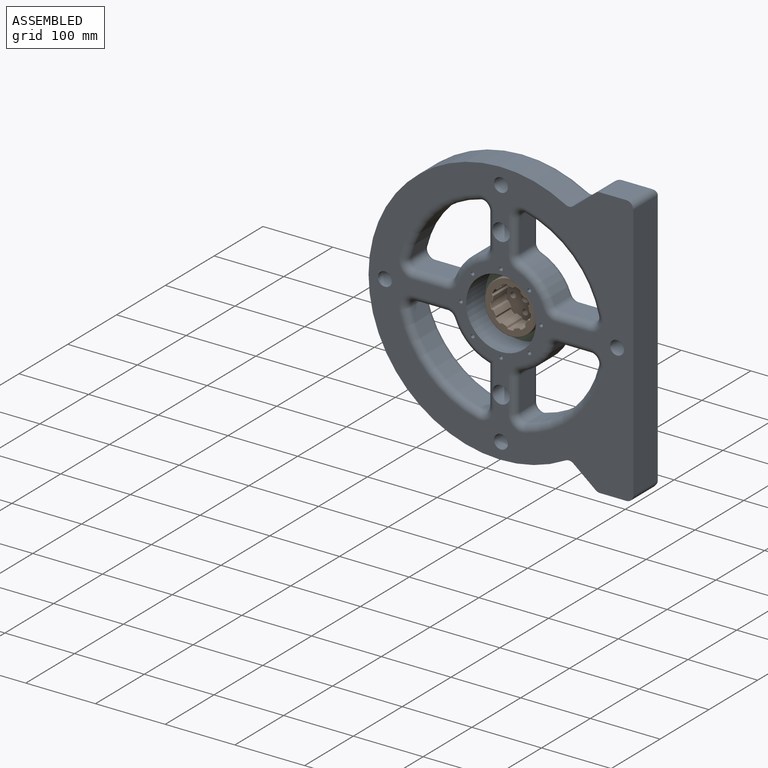
[diagram: assembled view]
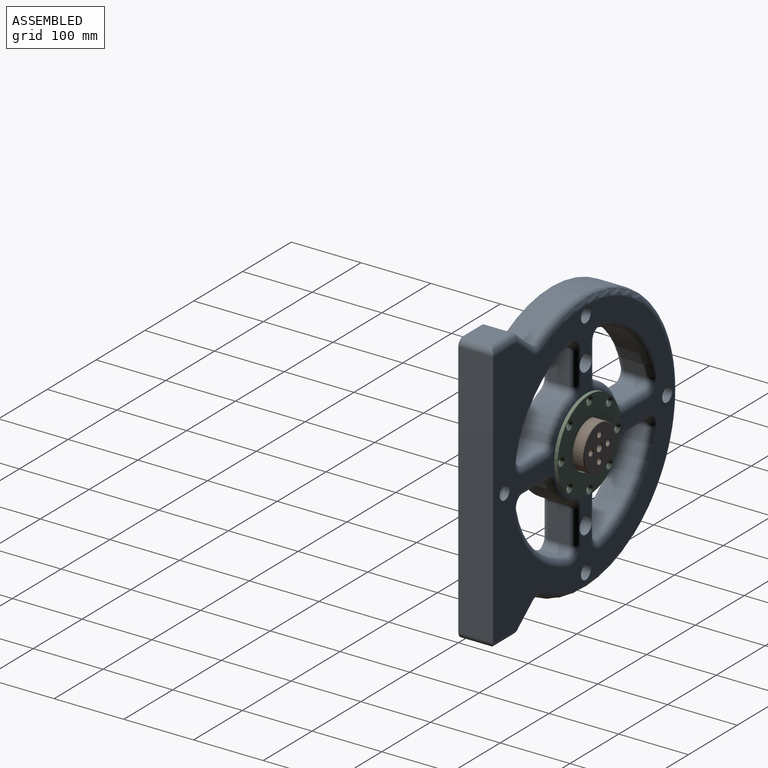
[diagram: assembled view, second angle]
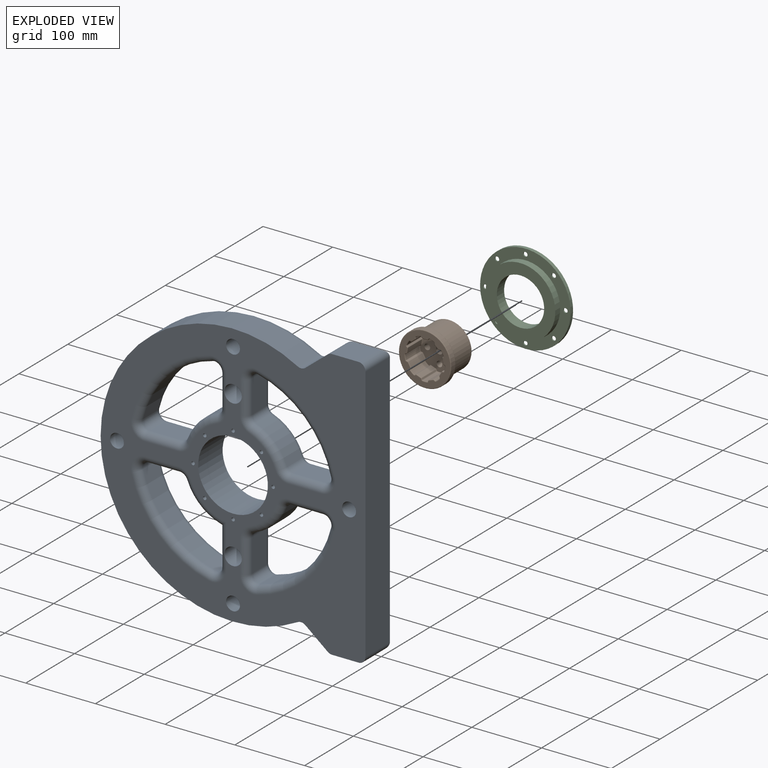
[diagram: exploded view]
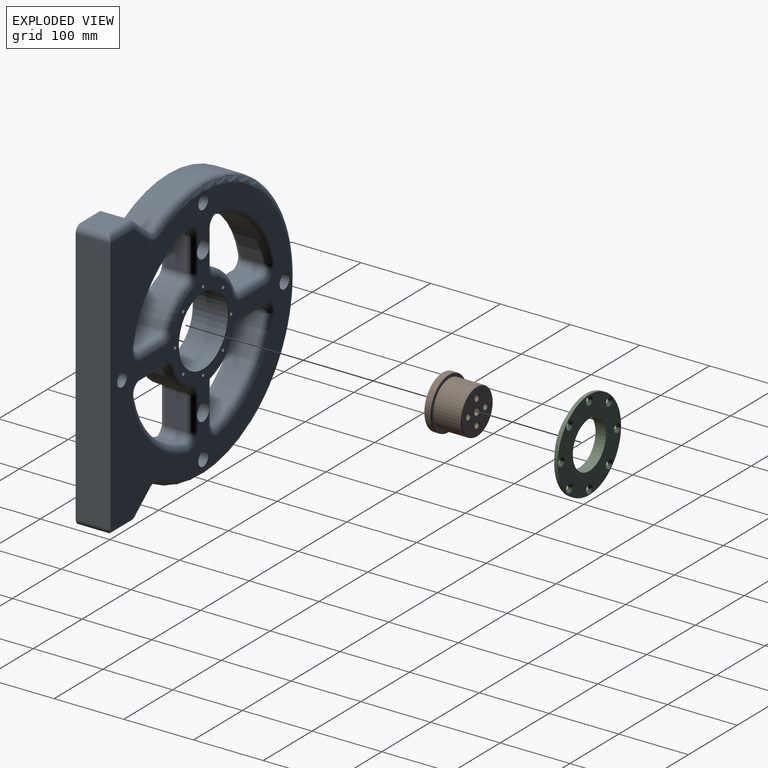
[diagram: exploded view, second angle]
ASSEMBLY  parts=3 mates=2
PART A: 131 faces, bbox 411.3x395.7x50 mm
  f0: plane 370x50mm, normal (0,-1,0), area 18500mm2, adj f29,f30,f108,f122
  f1: plane 40x37.89mm, normal (1,0,0), area 1515.7mm2, adj f29,f118,f121,f122
  f2: plane 40x31.99mm, normal (0.78,0.63,0), area 1647.2mm2, adj f29,f115,f118,f119
  f3: cylinder r=190mm len=380mm, axis (0,0,-1), area 31618.2mm2, adj f29,f112,f115,f116
  f4: plane 40x31.99mm, normal (-0.78,0.63,0), area 1647.2mm2, adj f29,f109,f112,f113
  f5: plane 46.96x30mm, normal (1,0,0), area 1408.8mm2, adj f48,f51,f55,f56
  f6: cylinder r=140mm len=103.91mm, axis (0,0,-1), area 4641.3mm2, adj f54,f55,f63,f64
  f7: plane 46.96x30mm, normal (0,1,0), area 1408.8mm2, adj f53,f62,f63,f67
  f8: cylinder r=140mm len=103.91mm, axis (0,0,-1), area 4641.3mm2, adj f35,f36,f43,f44
  f9: plane 46.96x30mm, normal (-1,0,0), area 1408.8mm2, adj f31,f35,f38,f39
  f10: cylinder r=75mm len=50.17mm, axis (0,0,-1), area 2115.3mm2, adj f25,f33,f38,f45
  f11: cylinder r=140mm len=103.91mm, axis (0,0,-1), area 4641.3mm2, adj f91,f92,f101,f102
  f12: plane 46.96x30mm, normal (0,-1,0), area 1408.8mm2, adj f88,f91,f95,f96
  f13: cylinder r=75mm len=43.7mm, axis (0,0,-1), area 1911.1mm2, adj f94,f95,f103,f104
  f14: cylinder r=140mm len=103.91mm, axis (0,0,-1), area 4641.3mm2, adj f74,f75,f83,f84
  f15: plane 46.96x30mm, normal (1,0,0), area 1408.8mm2, adj f68,f72,f73,f74
  f16: cylinder r=75mm len=43.7mm, axis (0,0,-1), area 1911.1mm2, adj f71,f72,f81,f82
  f17: cylinder r=12.5mm len=50mm, axis (0,0,-1), area 3916.2mm2, adj f29,f30,f37,f47,f88,f96
  f18: cylinder r=12.5mm len=50mm, axis (0,0,-1), area 3916.2mm2, adj f29,f30,f53,f67,f76,f87
  f19: plane 40x37.89mm, normal (-1,0,0), area 1515.7mm2, adj f29,f108,f109,f110
  f20: cylinder r=10mm len=50mm, axis (0,0,-1), area 3141.6mm2, adj f29,f30
  f21: cylinder r=10mm len=50mm, axis (0,0,-1), area 3141.6mm2, adj f29,f30
  f22: cylinder r=10mm len=50mm, axis (0,0,-1), area 3141.6mm2, adj f29,f30
  f23: cylinder r=10mm len=50mm, axis (0,0,-1), area 3141.6mm2, adj f29,f30
  f24: cylinder r=75mm len=43.7mm, axis (0,0,-1), area 1911.1mm2, adj f51,f52,f61,f62
  f25: plane 54.21x30mm, normal (0,1,0), area 1626.2mm2, adj f10,f37,f44,f47
  f26: plane 46.96x30mm, normal (-1,0,0), area 1408.8mm2, adj f93,f102,f103,f107
  f27: plane 46.96x30mm, normal (0,-1,0), area 1408.8mm2, adj f76,f81,f84,f87
  f28: cylinder r=50mm len=100mm, axis (0,0,-1), area 15708mm2, adj f29,f30
  f29: plane 390x380mm, normal (0,0,1), area 67300.3mm2, adj f0,f1,f2,f3,f4,f17,f18,f19
  f30: plane 370x370mm, normal (0,0,-1), area 57440.1mm2, adj f0,f17,f18,f20,f21,f22,f23,f28
  f31: cylinder r=10mm len=46.96mm, axis (0,-1,0), area 737.7mm2, adj f9,f30,f32,f34
  f32: torus R=20mm, axis (0,0,1), area 386.3mm2, adj f30,f31,f35,f36
  f33: torus R=65mm, axis (0,0,1), area 1097mm2, adj f10,f30,f34,f37
  f34: torus R=20mm, axis (0,0,1), area 259.2mm2, adj f30,f31,f33,f38
  f35: cylinder r=10mm len=30mm, axis (0,0,-1), area 541.1mm2, adj f8,f9,f32,f40
  f36: torus R=150mm, axis (0,0,1), area 2493.2mm2, adj f8,f30,f32,f41
  f37: cylinder r=10mm len=62.27mm, axis (-1,0,0), area 870.7mm2, adj f17,f25,f30,f33,f41
  f38: cylinder r=10mm len=30mm, axis (0,0,-1), area 363mm2, adj f9,f10,f34,f42
  f39: cylinder r=10mm len=46.96mm, axis (0,1,0), area 737.7mm2, adj f9,f29,f40,f42
  f40: torus R=20mm, axis (0,0,1), area 386.3mm2, adj f29,f35,f39,f43
  f41: torus R=20mm, axis (0,0,1), area 386.3mm2, adj f30,f36,f37,f44
  f42: torus R=20mm, axis (0,0,1), area 259.2mm2, adj f29,f38,f39,f45
  f43: torus R=150mm, axis (0,0,1), area 2493.2mm2, adj f8,f29,f40,f46
  f44: cylinder r=10mm len=30mm, axis (0,0,-1), area 541.1mm2, adj f8,f25,f41,f46
  f45: torus R=65mm, axis (0,0,1), area 1097mm2, adj f10,f29,f42,f47
  f46: torus R=20mm, axis (0,0,1), area 386.3mm2, adj f29,f43,f44,f47
  f47: cylinder r=10mm len=62.27mm, axis (1,0,0), area 870.7mm2, adj f17,f25,f29,f45,f46
  f48: cylinder r=10mm len=46.96mm, axis (0,1,0), area 737.7mm2, adj f5,f30,f49,f50
  f49: torus R=20mm, axis (0,0,1), area 259.2mm2, adj f30,f48,f51,f52
  f50: torus R=20mm, axis (0,0,1), area 386.3mm2, adj f30,f48,f54,f55
  f51: cylinder r=10mm len=30mm, axis (0,0,-1), area 363mm2, adj f5,f24,f49,f57
  f52: torus R=65mm, axis (0,0,1), area 952.2mm2, adj f24,f30,f49,f58
  f53: cylinder r=10mm len=46.96mm, axis (-1,0,0), area 711.9mm2, adj f7,f18,f30,f58,f59
  f54: torus R=150mm, axis (0,0,1), area 2493.2mm2, adj f6,f30,f50,f59
  f55: cylinder r=10mm len=30mm, axis (0,0,-1), area 541.1mm2, adj f5,f6,f50,f60
  f56: cylinder r=10mm len=46.96mm, axis (0,-1,0), area 737.7mm2, adj f5,f29,f57,f60
  f57: torus R=20mm, axis (0,0,1), area 259.2mm2, adj f29,f51,f56,f61
  f58: torus R=20mm, axis (0,0,1), area 259.2mm2, adj f30,f52,f53,f62
  f59: torus R=20mm, axis (0,0,1), area 386.3mm2, adj f30,f53,f54,f63
  f60: torus R=20mm, axis (0,0,1), area 386.3mm2, adj f29,f55,f56,f64
  f61: torus R=65mm, axis (0,0,1), area 952.2mm2, adj f24,f29,f57,f65
  f62: cylinder r=10mm len=30mm, axis (0,0,-1), area 363mm2, adj f7,f24,f58,f65
  f63: cylinder r=10mm len=30mm, axis (0,0,-1), area 541.1mm2, adj f6,f7,f59,f66
  f64: torus R=150mm, axis (0,0,1), area 2493.2mm2, adj f6,f29,f60,f66
  f65: torus R=20mm, axis (0,0,1), area 259.2mm2, adj f29,f61,f62,f67
  f66: torus R=20mm, axis (0,0,1), area 386.3mm2, adj f29,f63,f64,f67
  f67: cylinder r=10mm len=46.96mm, axis (1,0,0), area 711.9mm2, adj f7,f18,f29,f65,f66
  f68: cylinder r=10mm len=46.96mm, axis (0,1,0), area 737.7mm2, adj f15,f30,f69,f70
  f69: torus R=20mm, axis (0,0,1), area 259.2mm2, adj f30,f68,f71,f72
  f70: torus R=20mm, axis (0,0,1), area 386.3mm2, adj f30,f68,f74,f75
  f71: torus R=65mm, axis (0,0,1), area 952.2mm2, adj f16,f30,f69,f77
  f72: cylinder r=10mm len=30mm, axis (0,0,-1), area 363mm2, adj f15,f16,f69,f78
  f73: cylinder r=10mm len=46.96mm, axis (0,-1,0), area 737.7mm2, adj f15,f29,f78,f79
  f74: cylinder r=10mm len=30mm, axis (0,0,-1), area 541.1mm2, adj f14,f15,f70,f79
  f75: torus R=150mm, axis (0,0,1), area 2493.2mm2, adj f14,f30,f70,f80
  f76: cylinder r=10mm len=46.96mm, axis (1,0,0), area 711.9mm2, adj f18,f27,f30,f77,f80
  f77: torus R=20mm, axis (0,0,1), area 259.2mm2, adj f30,f71,f76,f81
  f78: torus R=20mm, axis (0,0,1), area 259.2mm2, adj f29,f72,f73,f82
  f79: torus R=20mm, axis (0,0,1), area 386.3mm2, adj f29,f73,f74,f83
  f80: torus R=20mm, axis (0,0,1), area 386.3mm2, adj f30,f75,f76,f84
  f81: cylinder r=10mm len=30mm, axis (0,0,-1), area 363mm2, adj f16,f27,f77,f85
  f82: torus R=65mm, axis (0,0,1), area 952.2mm2, adj f16,f29,f78,f85
  f83: torus R=150mm, axis (0,0,1), area 2493.2mm2, adj f14,f29,f79,f86
  f84: cylinder r=10mm len=30mm, axis (0,0,-1), area 541.1mm2, adj f14,f27,f80,f86
  f85: torus R=20mm, axis (0,0,1), area 259.2mm2, adj f29,f81,f82,f87
  f86: torus R=20mm, axis (0,0,1), area 386.3mm2, adj f29,f83,f84,f87
  f87: cylinder r=10mm len=46.96mm, axis (-1,0,0), area 711.9mm2, adj f18,f27,f29,f85,f86
  f88: cylinder r=10mm len=46.96mm, axis (1,0,0), area 711.9mm2, adj f12,f17,f30,f89,f90
  f89: torus R=20mm, axis (0,0,1), area 386.3mm2, adj f30,f88,f91,f92
  f90: torus R=20mm, axis (0,0,1), area 259.2mm2, adj f30,f88,f94,f95
  f91: cylinder r=10mm len=30mm, axis (0,0,-1), area 541.1mm2, adj f11,f12,f89,f97
  f92: torus R=150mm, axis (0,0,1), area 2493.2mm2, adj f11,f30,f89,f98
  f93: cylinder r=10mm len=46.96mm, axis (0,-1,0), area 737.7mm2, adj f26,f30,f98,f99
  f94: torus R=65mm, axis (0,0,1), area 952.2mm2, adj f13,f30,f90,f99
  f95: cylinder r=10mm len=30mm, axis (0,0,-1), area 363mm2, adj f12,f13,f90,f100
  f96: cylinder r=10mm len=46.96mm, axis (-1,0,0), area 711.9mm2, adj f12,f17,f29,f97,f100
  f97: torus R=20mm, axis (0,0,1), area 386.3mm2, adj f29,f91,f96,f101
  f98: torus R=20mm, axis (0,0,1), area 386.3mm2, adj f30,f92,f93,f102
  f99: torus R=20mm, axis (0,0,1), area 259.2mm2, adj f30,f93,f94,f103
  f100: torus R=20mm, axis (0,0,1), area 259.2mm2, adj f29,f95,f96,f104
  f101: torus R=150mm, axis (0,0,1), area 2493.2mm2, adj f11,f29,f97,f105
  f102: cylinder r=10mm len=30mm, axis (0,0,-1), area 541.1mm2, adj f11,f26,f98,f105
  f103: cylinder r=10mm len=30mm, axis (0,0,-1), area 363mm2, adj f13,f26,f99,f106
  f104: torus R=65mm, axis (0,0,1), area 952.2mm2, adj f13,f29,f100,f106
  f105: torus R=20mm, axis (0,0,1), area 386.3mm2, adj f29,f101,f102,f107
  f106: torus R=20mm, axis (0,0,1), area 259.2mm2, adj f29,f103,f104,f107
  f107: cylinder r=10mm len=46.96mm, axis (0,1,0), area 737.7mm2, adj f26,f29,f105,f106
  f108: cylinder r=10mm len=50mm, axis (0,0,-1), area 728.3mm2, adj f0,f19,f29,f110
  f109: cylinder r=10mm len=40mm, axis (0,0,-1), area 272.4mm2, adj f4,f19,f29,f111
  f110: cylinder r=10mm len=47.89mm, axis (0,-1,0), area 695.2mm2, adj f19,f30,f108,f111
  f111: sphere r=10mm, area 68.1mm2, adj f109,f110,f113
  f112: cylinder r=10mm len=40mm, axis (0,0,-1), area 476.1mm2, adj f3,f4,f29,f114
  f113: cylinder r=10mm len=38.29mm, axis (-0.63,-0.78,0), area 646.9mm2, adj f4,f30,f111,f114
  f114: torus R=20mm, axis (0,0,1), area 254.9mm2, adj f30,f112,f113,f116
  f115: cylinder r=10mm len=40mm, axis (0,0,-1), area 476.1mm2, adj f2,f3,f29,f117
  f116: torus R=180mm, axis (0,0,1), area 12179mm2, adj f3,f30,f114,f117
  f117: torus R=20mm, axis (0,0,1), area 254.9mm2, adj f30,f115,f116,f119
  f118: cylinder r=10mm len=40mm, axis (0,0,1), area 272.4mm2, adj f1,f2,f29,f120
  f119: cylinder r=10mm len=38.29mm, axis (-0.63,0.78,0), area 646.9mm2, adj f2,f30,f117,f120
  f120: sphere r=10mm, area 68.1mm2, adj f118,f119,f121
  f121: cylinder r=10mm len=47.89mm, axis (0,1,0), area 695.2mm2, adj f1,f30,f120,f122
  f122: cylinder r=10mm len=50mm, axis (0,0,-1), area 728.3mm2, adj f0,f1,f29,f121
  f123: cylinder r=2.5mm len=50mm, axis (0,0,-1), area 785.4mm2, adj f29,f30
  f124: cylinder r=2.5mm len=50mm, axis (0,0,-1), area 785.4mm2, adj f29,f30
  f125: cylinder r=2.5mm len=50mm, axis (0,0,-1), area 785.4mm2, adj f29,f30
  f126: cylinder r=2.5mm len=50mm, axis (0,0,-1), area 785.4mm2, adj f29,f30
  f127: cylinder r=2.5mm len=50mm, axis (0,0,-1), area 785.4mm2, adj f29,f30
  f128: cylinder r=2.5mm len=50mm, axis (0,0,-1), area 785.4mm2, adj f29,f30
  f129: cylinder r=2.5mm len=50mm, axis (0,0,-1), area 785.4mm2, adj f29,f30
  f130: cylinder r=2.5mm len=50mm, axis (0,0,-1), area 785.4mm2, adj f29,f30
PART B: 235 faces, bbox 81.2x81.2x50 mm
  f0: plane 73x73mm, normal (0,0,1), area 1668.9mm2, adj f47,f60,f64,f69,f70,f74,f79,f80
  f1: cylinder r=32.5mm len=65mm, axis (0,0,-1), area 7963.9mm2, adj f46,f54
  f2: cylinder r=25.94mm len=28mm, axis (0,0,-1), area 190.7mm2, adj f217,f218,f228,f229
  f3: plane 28x1.84mm, normal (0.94,-0.34,0), area 54.9mm2, adj f223,f228,f231,f234
  f4: cylinder r=86.08mm len=28mm, axis (0,0,-1), area 199.4mm2, adj f221,f222,f230,f231
  f5: plane 28x1.93mm, normal (0.17,0.98,0), area 54.9mm2, adj f211,f212,f220,f221
  f6: cylinder r=25.94mm len=28mm, axis (0,0,-1), area 190.7mm2, adj f201,f202,f210,f211
  f7: plane 28x1.7mm, normal (0.5,-0.87,0), area 54.9mm2, adj f191,f192,f200,f201
  f8: cylinder r=86.08mm len=28mm, axis (0,0,-1), area 199.4mm2, adj f181,f182,f190,f191
  f9: plane 28x1.5mm, normal (0.77,0.64,0), area 54.9mm2, adj f171,f172,f180,f181
  f10: cylinder r=25.94mm len=28mm, axis (0,0,-1), area 190.7mm2, adj f161,f162,f170,f171
  f11: plane 28x1.93mm, normal (-0.17,-0.98,0), area 54.9mm2, adj f151,f152,f160,f161
  f12: cylinder r=86.08mm len=28mm, axis (0,0,-1), area 199.4mm2, adj f141,f142,f150,f151
  f13: plane 28x1.96mm, normal (1,0,0), area 54.9mm2, adj f131,f132,f140,f141
  f14: cylinder r=25.94mm len=28mm, axis (0,0,-1), area 190.7mm2, adj f121,f122,f130,f131
  f15: plane 28x1.5mm, normal (-0.77,-0.64,0), area 54.9mm2, adj f111,f112,f120,f121
  f16: cylinder r=86.08mm len=28mm, axis (0,0,-1), area 199.4mm2, adj f101,f102,f110,f111
  f17: plane 28x1.5mm, normal (0.77,-0.64,0), area 54.9mm2, adj f91,f92,f100,f101
  f18: cylinder r=25.94mm len=28mm, axis (0,0,-1), area 190.7mm2, adj f81,f82,f90,f91
  f19: plane 28x1.96mm, normal (-1,0,0), area 54.9mm2, adj f71,f72,f80,f81
  f20: cylinder r=86.08mm len=28mm, axis (0,0,-1), area 199.4mm2, adj f61,f62,f70,f71
  f21: plane 28x1.93mm, normal (0.17,-0.98,0), area 54.9mm2, adj f55,f59,f60,f61
  f22: cylinder r=25.94mm len=28mm, axis (0,0,-1), area 190.7mm2, adj f58,f59,f68,f69
  f23: plane 28x1.5mm, normal (-0.77,0.64,0), area 54.9mm2, adj f67,f68,f78,f79
  f24: cylinder r=86.08mm len=28mm, axis (0,0,-1), area 199.4mm2, adj f77,f78,f88,f89
  f25: plane 28x1.7mm, normal (-0.5,-0.87,0), area 54.9mm2, adj f87,f88,f98,f99
  f26: cylinder r=25.94mm len=28mm, axis (0,0,-1), area 190.7mm2, adj f97,f98,f108,f109
  f27: plane 28x1.93mm, normal (-0.17,0.98,0), area 54.9mm2, adj f107,f108,f118,f119
  f28: cylinder r=86.08mm len=28mm, axis (0,0,-1), area 199.4mm2, adj f117,f118,f128,f129
  f29: plane 28x1.84mm, normal (-0.94,-0.34,0), area 54.9mm2, adj f127,f128,f138,f139
  f30: cylinder r=25.94mm len=28mm, axis (0,0,-1), area 190.7mm2, adj f137,f138,f148,f149
  f31: plane 28x1.7mm, normal (0.5,0.87,0), area 54.9mm2, adj f147,f148,f158,f159
  f32: cylinder r=86.08mm len=28mm, axis (0,0,-1), area 199.4mm2, adj f157,f158,f168,f169
  f33: plane 28x1.84mm, normal (-0.94,0.34,0), area 54.9mm2, adj f167,f168,f178,f179
  f34: cylinder r=25.94mm len=28mm, axis (0,0,-1), area 190.7mm2, adj f177,f178,f188,f189
  f35: plane 28x1.84mm, normal (0.94,0.34,0), area 54.9mm2, adj f187,f188,f198,f199
  f36: cylinder r=86.08mm len=28mm, axis (0,0,-1), area 199.4mm2, adj f197,f198,f208,f209
  f37: plane 28x1.7mm, normal (-0.5,0.87,0), area 54.9mm2, adj f207,f208,f218,f219
  f38: plane 63x63mm, normal (0,0,-1), area 2677.3mm2, adj f49,f50,f51,f52,f53,f54
  f39: plane 55.15x54.53mm, normal (0,0,1), area 1836.1mm2, adj f40,f41,f42,f43,f44,f55,f57,f58
  f40: cylinder r=4.1mm len=19mm, axis (0,0,1), area 489.5mm2, adj f39,f53
  f41: cylinder r=4.1mm len=19mm, axis (0,0,1), area 489.5mm2, adj f39,f52
  f42: cylinder r=4.1mm len=19mm, axis (0,0,1), area 489.5mm2, adj f39,f51
  f43: cylinder r=4.1mm len=19mm, axis (0,0,1), area 489.5mm2, adj f39,f50
  f44: cylinder r=5mm len=19mm, axis (0,0,1), area 596.9mm2, adj f39,f49
  f45: cylinder r=37.5mm len=75mm, axis (0,0,1), area 1885mm2, adj f47,f48
  f46: plane 73x73mm, normal (0,0,-1), area 867.1mm2, adj f1,f48
  f47: torus R=36.5mm, axis (0,0,1), area 366.5mm2, adj f0,f45
  f48: torus R=36.5mm, axis (0,0,1), area 366.5mm2, adj f45,f46
  f49: torus R=6mm, axis (0,0,1), area 52.9mm2, adj f38,f44
  f50: torus R=5.1mm, axis (0,0,1), area 44.1mm2, adj f38,f43
  f51: torus R=5.1mm, axis (0,0,1), area 44.1mm2, adj f38,f42
  f52: torus R=5.1mm, axis (0,0,1), area 44.1mm2, adj f38,f41
  f53: torus R=5.1mm, axis (0,0,1), area 44.1mm2, adj f38,f40
  f54: torus R=31.5mm, axis (0,0,1), area 317.2mm2, adj f1,f38
  f55: cylinder r=1mm len=2.11mm, axis (0.98,0.17,0), area 3.1mm2, adj f21,f39,f56,f57
  f56: sphere r=1mm, area 1.1mm2, adj f55,f58,f59
  f57: torus R=2mm, axis (0,0,1), area 1.8mm2, adj f39,f55,f61,f62
  f58: torus R=24.94mm, axis (0,0,1), area 10.5mm2, adj f22,f39,f56,f63
  f59: cylinder r=1mm len=28mm, axis (0,0,-1), area 30.5mm2, adj f21,f22,f56,f64
  f60: cylinder r=1mm len=2.11mm, axis (-0.98,-0.17,0), area 3.1mm2, adj f0,f21,f64,f65
  f61: cylinder r=1mm len=28mm, axis (0,0,-1), area 23.3mm2, adj f20,f21,f57,f65
  f62: torus R=87.08mm, axis (0,0,1), area 11.2mm2, adj f20,f39,f57,f66
  f63: sphere r=1mm, area 1.1mm2, adj f58,f67,f68
  f64: torus R=2mm, axis (0,0,1), area 2.3mm2, adj f0,f59,f60,f69
  f65: sphere r=1mm, area 0.8mm2, adj f60,f61,f70
  f66: torus R=2mm, axis (0,0,1), area 1.8mm2, adj f39,f62,f71,f72
  f67: cylinder r=1mm len=2.15mm, axis (-0.64,-0.77,0), area 3.1mm2, adj f23,f39,f63,f73
  f68: cylinder r=1mm len=28mm, axis (0,0,-1), area 30.5mm2, adj f22,f23,f63,f74
  f69: torus R=26.94mm, axis (0,0,1), area 10.8mm2, adj f0,f22,f64,f74
  f70: torus R=85.08mm, axis (0,0,1), area 11.1mm2, adj f0,f20,f65,f75
  f71: cylinder r=1mm len=28mm, axis (0,0,-1), area 23.3mm2, adj f19,f20,f66,f75
  f72: cylinder r=1mm len=1.96mm, axis (0,-1,0), area 3.1mm2, adj f19,f39,f66,f76
  f73: torus R=2mm, axis (0,0,1), area 1.8mm2, adj f39,f67,f77,f78
  f74: torus R=2mm, axis (0,0,1), area 2.3mm2, adj f0,f68,f69,f79
  f75: sphere r=1mm, area 0.8mm2, adj f70,f71,f80
  f76: sphere r=1mm, area 1.1mm2, adj f72,f81,f82
  f77: torus R=87.08mm, axis (0,0,1), area 11.2mm2, adj f24,f39,f73,f83
  f78: cylinder r=1mm len=28mm, axis (0,0,-1), area 23.3mm2, adj f23,f24,f73,f84
  f79: cylinder r=1mm len=2.15mm, axis (0.64,0.77,0), area 3.1mm2, adj f0,f23,f74,f84
  f80: cylinder r=1mm len=1.96mm, axis (0,1,0), area 3.1mm2, adj f0,f19,f75,f85
  f81: cylinder r=1mm len=28mm, axis (0,0,-1), area 30.5mm2, adj f18,f19,f76,f85
  f82: torus R=24.94mm, axis (0,0,1), area 10.5mm2, adj f18,f39,f76,f86
  f83: torus R=2mm, axis (0,0,1), area 1.8mm2, adj f39,f77,f87,f88
  f84: sphere r=1mm, area 0.8mm2, adj f78,f79,f89
  f85: torus R=2mm, axis (0,0,1), area 2.3mm2, adj f0,f80,f81,f90
  f86: sphere r=1mm, area 1.1mm2, adj f82,f91,f92
  f87: cylinder r=1mm len=2.2mm, axis (0.87,-0.5,0), area 3.1mm2, adj f25,f39,f83,f93
  f88: cylinder r=1mm len=28mm, axis (0,0,-1), area 23.3mm2, adj f24,f25,f83,f94
  f89: torus R=85.08mm, axis (0,0,1), area 11.1mm2, adj f0,f24,f84,f94
  f90: torus R=26.94mm, axis (0,0,1), area 10.8mm2, adj f0,f18,f85,f95
  f91: cylinder r=1mm len=28mm, axis (0,0,-1), area 30.5mm2, adj f17,f18,f86,f95
  f92: cylinder r=1mm len=2.15mm, axis (0.64,0.77,0), area 3.1mm2, adj f17,f39,f86,f96
  f93: sphere r=1mm, area 1.1mm2, adj f87,f97,f98
  f94: sphere r=1mm, area 0.8mm2, adj f88,f89,f99
  f95: torus R=2mm, axis (0,0,1), area 2.3mm2, adj f0,f90,f91,f100
  f96: torus R=2mm, axis (0,0,1), area 1.8mm2, adj f39,f92,f101,f102
  f97: torus R=24.94mm, axis (0,0,1), area 10.5mm2, adj f26,f39,f93,f103
  f98: cylinder r=1mm len=28mm, axis (0,0,-1), area 30.5mm2, adj f25,f26,f93,f104
  f99: cylinder r=1mm len=2.2mm, axis (-0.87,0.5,0), area 3.1mm2, adj f0,f25,f94,f104
  f100: cylinder r=1mm len=2.15mm, axis (-0.64,-0.77,0), area 3.1mm2, adj f0,f17,f95,f105
  f101: cylinder r=1mm len=28mm, axis (0,0,-1), area 23.3mm2, adj f16,f17,f96,f105
  f102: torus R=87.08mm, axis (0,0,1), area 11.2mm2, adj f16,f39,f96,f106
  f103: sphere r=1mm, area 1.1mm2, adj f97,f107,f108
  f104: torus R=2mm, axis (0,0,1), area 2.3mm2, adj f0,f98,f99,f109
  f105: sphere r=1mm, area 0.8mm2, adj f100,f101,f110
  f106: torus R=2mm, axis (0,0,1), area 1.8mm2, adj f39,f102,f111,f112
  f107: cylinder r=1mm len=2.11mm, axis (-0.98,-0.17,0), area 3.1mm2, adj f27,f39,f103,f113
  f108: cylinder r=1mm len=28mm, axis (0,0,-1), area 30.5mm2, adj f26,f27,f103,f114
  f109: torus R=26.94mm, axis (0,0,1), area 10.8mm2, adj f0,f26,f104,f114
  f110: torus R=85.08mm, axis (0,0,1), area 11.1mm2, adj f0,f16,f105,f115
  f111: cylinder r=1mm len=28mm, axis (0,0,-1), area 23.3mm2, adj f15,f16,f106,f115
  f112: cylinder r=1mm len=2.15mm, axis (0.64,-0.77,0), area 3.1mm2, adj f15,f39,f106,f116
  f113: torus R=2mm, axis (0,0,1), area 1.8mm2, adj f39,f107,f117,f118
  f114: torus R=2mm, axis (0,0,1), area 2.3mm2, adj f0,f108,f109,f119
  f115: sphere r=1mm, area 0.8mm2, adj f110,f111,f120
  f116: sphere r=1mm, area 1.1mm2, adj f112,f121,f122
  f117: torus R=87.08mm, axis (0,0,1), area 11.2mm2, adj f28,f39,f113,f123
  f118: cylinder r=1mm len=28mm, axis (0,0,-1), area 23.3mm2, adj f27,f28,f113,f124
  f119: cylinder r=1mm len=2.11mm, axis (0.98,0.17,0), area 3.1mm2, adj f0,f27,f114,f124
  f120: cylinder r=1mm len=2.15mm, axis (-0.64,0.77,0), area 3.1mm2, adj f0,f15,f115,f125
  f121: cylinder r=1mm len=28mm, axis (0,0,-1), area 30.5mm2, adj f14,f15,f116,f125
  f122: torus R=24.94mm, axis (0,0,1), area 10.5mm2, adj f14,f39,f116,f126
  f123: torus R=2mm, axis (0,0,1), area 1.8mm2, adj f39,f117,f127,f128
  f124: sphere r=1mm, area 0.8mm2, adj f118,f119,f129
  f125: torus R=2mm, axis (0,0,1), area 2.3mm2, adj f0,f120,f121,f130
  f126: sphere r=1mm, area 1.1mm2, adj f122,f131,f132
  f127: cylinder r=1mm len=2.19mm, axis (0.34,-0.94,0), area 3.1mm2, adj f29,f39,f123,f133
  f128: cylinder r=1mm len=28mm, axis (0,0,-1), area 23.3mm2, adj f28,f29,f123,f134
  f129: torus R=85.08mm, axis (0,0,1), area 11.1mm2, adj f0,f28,f124,f134
  f130: torus R=26.94mm, axis (0,0,1), area 10.8mm2, adj f0,f14,f125,f135
  f131: cylinder r=1mm len=28mm, axis (0,0,-1), area 30.5mm2, adj f13,f14,f126,f135
  f132: cylinder r=1mm len=1.96mm, axis (0,1,0), area 3.1mm2, adj f13,f39,f126,f136
  f133: sphere r=1mm, area 1.1mm2, adj f127,f137,f138
  f134: sphere r=1mm, area 0.8mm2, adj f128,f129,f139
  f135: torus R=2mm, axis (0,0,1), area 2.3mm2, adj f0,f130,f131,f140
  f136: torus R=2mm, axis (0,0,1), area 1.8mm2, adj f39,f132,f141,f142
  f137: torus R=24.94mm, axis (0,0,1), area 10.5mm2, adj f30,f39,f133,f143
  f138: cylinder r=1mm len=28mm, axis (0,0,-1), area 30.5mm2, adj f29,f30,f133,f144
  f139: cylinder r=1mm len=2.19mm, axis (-0.34,0.94,0), area 3.1mm2, adj f0,f29,f134,f144
  f140: cylinder r=1mm len=1.96mm, axis (0,-1,0), area 3.1mm2, adj f0,f13,f135,f145
  f141: cylinder r=1mm len=28mm, axis (0,0,-1), area 23.3mm2, adj f12,f13,f136,f145
  f142: torus R=87.08mm, axis (0,0,1), area 11.2mm2, adj f12,f39,f136,f146
  f143: sphere r=1mm, area 1.1mm2, adj f137,f147,f148
  f144: torus R=2mm, axis (0,0,1), area 2.3mm2, adj f0,f138,f139,f149
  f145: sphere r=1mm, area 0.8mm2, adj f140,f141,f150
  f146: torus R=2mm, axis (0,0,1), area 1.8mm2, adj f39,f142,f151,f152
  f147: cylinder r=1mm len=2.2mm, axis (-0.87,0.5,0), area 3.1mm2, adj f31,f39,f143,f153
  f148: cylinder r=1mm len=28mm, axis (0,0,-1), area 30.5mm2, adj f30,f31,f143,f154
  f149: torus R=26.94mm, axis (0,0,1), area 10.8mm2, adj f0,f30,f144,f154
  f150: torus R=85.08mm, axis (0,0,1), area 11.1mm2, adj f0,f12,f145,f155
  f151: cylinder r=1mm len=28mm, axis (0,0,-1), area 23.3mm2, adj f11,f12,f146,f155
  f152: cylinder r=1mm len=2.11mm, axis (0.98,-0.17,0), area 3.1mm2, adj f11,f39,f146,f156
  f153: torus R=2mm, axis (0,0,1), area 1.8mm2, adj f39,f147,f157,f158
  f154: torus R=2mm, axis (0,0,1), area 2.3mm2, adj f0,f148,f149,f159
  f155: sphere r=1mm, area 0.8mm2, adj f150,f151,f160
  f156: sphere r=1mm, area 1.1mm2, adj f152,f161,f162
  f157: torus R=87.08mm, axis (0,0,1), area 11.2mm2, adj f32,f39,f153,f163
  f158: cylinder r=1mm len=28mm, axis (0,0,-1), area 23.3mm2, adj f31,f32,f153,f164
  f159: cylinder r=1mm len=2.2mm, axis (0.87,-0.5,0), area 3.1mm2, adj f0,f31,f154,f164
  f160: cylinder r=1mm len=2.11mm, axis (-0.98,0.17,0), area 3.1mm2, adj f0,f11,f155,f165
  f161: cylinder r=1mm len=28mm, axis (0,0,-1), area 30.5mm2, adj f10,f11,f156,f165
  f162: torus R=24.94mm, axis (0,0,1), area 10.5mm2, adj f10,f39,f156,f166
  f163: torus R=2mm, axis (0,0,1), area 1.8mm2, adj f39,f157,f167,f168
  f164: sphere r=1mm, area 0.8mm2, adj f158,f159,f169
  f165: torus R=2mm, axis (0,0,1), area 2.3mm2, adj f0,f160,f161,f170
  f166: sphere r=1mm, area 1.1mm2, adj f162,f171,f172
  f167: cylinder r=1mm len=2.19mm, axis (-0.34,-0.94,0), area 3.1mm2, adj f33,f39,f163,f173
  f168: cylinder r=1mm len=28mm, axis (0,0,-1), area 23.3mm2, adj f32,f33,f163,f174
  f169: torus R=85.08mm, axis (0,0,1), area 11.1mm2, adj f0,f32,f164,f174
  f170: torus R=26.94mm, axis (0,0,1), area 10.8mm2, adj f0,f10,f165,f175
  f171: cylinder r=1mm len=28mm, axis (0,0,-1), area 30.5mm2, adj f9,f10,f166,f175
  f172: cylinder r=1mm len=2.15mm, axis (-0.64,0.77,0), area 3.1mm2, adj f9,f39,f166,f176
  f173: sphere r=1mm, area 1.1mm2, adj f167,f177,f178
  f174: sphere r=1mm, area 0.8mm2, adj f168,f169,f179
  f175: torus R=2mm, axis (0,0,1), area 2.3mm2, adj f0,f170,f171,f180
  f176: torus R=2mm, axis (0,0,1), area 1.8mm2, adj f39,f172,f181,f182
  f177: torus R=24.94mm, axis (0,0,1), area 10.5mm2, adj f34,f39,f173,f183
  f178: cylinder r=1mm len=28mm, axis (0,0,-1), area 30.5mm2, adj f33,f34,f173,f184
  f179: cylinder r=1mm len=2.19mm, axis (0.34,0.94,0), area 3.1mm2, adj f0,f33,f174,f184
  f180: cylinder r=1mm len=2.15mm, axis (0.64,-0.77,0), area 3.1mm2, adj f0,f9,f175,f185
  f181: cylinder r=1mm len=28mm, axis (0,0,-1), area 23.3mm2, adj f8,f9,f176,f185
  f182: torus R=87.08mm, axis (0,0,1), area 11.2mm2, adj f8,f39,f176,f186
  f183: sphere r=1mm, area 1.1mm2, adj f177,f187,f188
  f184: torus R=2mm, axis (0,0,1), area 2.3mm2, adj f0,f178,f179,f189
  f185: sphere r=1mm, area 0.8mm2, adj f180,f181,f190
  f186: torus R=2mm, axis (0,0,1), area 1.8mm2, adj f39,f182,f191,f192
  f187: cylinder r=1mm len=2.19mm, axis (-0.34,0.94,0), area 3.1mm2, adj f35,f39,f183,f193
  f188: cylinder r=1mm len=28mm, axis (0,0,-1), area 30.5mm2, adj f34,f35,f183,f194
  f189: torus R=26.94mm, axis (0,0,1), area 10.8mm2, adj f0,f34,f184,f194
  f190: torus R=85.08mm, axis (0,0,1), area 11.1mm2, adj f0,f8,f185,f195
  f191: cylinder r=1mm len=28mm, axis (0,0,-1), area 23.3mm2, adj f7,f8,f186,f195
  f192: cylinder r=1mm len=2.2mm, axis (0.87,0.5,0), area 3.1mm2, adj f7,f39,f186,f196
  f193: torus R=2mm, axis (0,0,1), area 1.8mm2, adj f39,f187,f197,f198
  f194: torus R=2mm, axis (0,0,1), area 2.3mm2, adj f0,f188,f189,f199
  f195: sphere r=1mm, area 0.8mm2, adj f190,f191,f200
  f196: sphere r=1mm, area 1.1mm2, adj f192,f201,f202
  f197: torus R=87.08mm, axis (0,0,1), area 11.2mm2, adj f36,f39,f193,f203
  f198: cylinder r=1mm len=28mm, axis (0,0,-1), area 23.3mm2, adj f35,f36,f193,f204
  f199: cylinder r=1mm len=2.19mm, axis (0.34,-0.94,0), area 3.1mm2, adj f0,f35,f194,f204
  f200: cylinder r=1mm len=2.2mm, axis (-0.87,-0.5,0), area 3.1mm2, adj f0,f7,f195,f205
  f201: cylinder r=1mm len=28mm, axis (0,0,-1), area 30.5mm2, adj f6,f7,f196,f205
  f202: torus R=24.94mm, axis (0,0,1), area 10.5mm2, adj f6,f39,f196,f206
  f203: torus R=2mm, axis (0,0,1), area 1.8mm2, adj f39,f197,f207,f208
  f204: sphere r=1mm, area 0.8mm2, adj f198,f199,f209
  f205: torus R=2mm, axis (0,0,1), area 2.3mm2, adj f0,f200,f201,f210
  f206: sphere r=1mm, area 1.1mm2, adj f202,f211,f212
  f207: cylinder r=1mm len=2.2mm, axis (-0.87,-0.5,0), area 3.1mm2, adj f37,f39,f203,f213
  f208: cylinder r=1mm len=28mm, axis (0,0,-1), area 23.3mm2, adj f36,f37,f203,f214
  f209: torus R=85.08mm, axis (0,0,1), area 11.1mm2, adj f0,f36,f204,f214
  f210: torus R=26.94mm, axis (0,0,1), area 10.8mm2, adj f0,f6,f205,f215
  f211: cylinder r=1mm len=28mm, axis (0,0,-1), area 30.5mm2, adj f5,f6,f206,f215
  f212: cylinder r=1mm len=2.11mm, axis (-0.98,0.17,0), area 3.1mm2, adj f5,f39,f206,f216
  f213: sphere r=1mm, area 1.1mm2, adj f207,f217,f218
  f214: sphere r=1mm, area 0.8mm2, adj f208,f209,f219
  f215: torus R=2mm, axis (0,0,1), area 2.3mm2, adj f0,f210,f211,f220
  f216: torus R=2mm, axis (0,0,1), area 1.8mm2, adj f39,f212,f221,f222
  f217: torus R=24.94mm, axis (0,0,1), area 10.5mm2, adj f2,f39,f213,f224
  f218: cylinder r=1mm len=28mm, axis (0,0,-1), area 30.5mm2, adj f2,f37,f213,f225
  f219: cylinder r=1mm len=2.2mm, axis (0.87,0.5,0), area 3.1mm2, adj f0,f37,f214,f225
  f220: cylinder r=1mm len=2.11mm, axis (0.98,-0.17,0), area 3.1mm2, adj f0,f5,f215,f226
  f221: cylinder r=1mm len=28mm, axis (0,0,-1), area 23.3mm2, adj f4,f5,f216,f226
  f222: torus R=87.08mm, axis (0,0,1), area 11.2mm2, adj f4,f39,f216,f227
  f223: cylinder r=1mm len=2.19mm, axis (0.34,0.94,0), area 3.1mm2, adj f3,f39,f224,f227
  f224: sphere r=1mm, area 1.1mm2, adj f217,f223,f228
  f225: torus R=2mm, axis (0,0,1), area 2.3mm2, adj f0,f218,f219,f229
  f226: sphere r=1mm, area 0.8mm2, adj f220,f221,f230
  f227: torus R=2mm, axis (0,0,1), area 1.8mm2, adj f39,f222,f223,f231
  f228: cylinder r=1mm len=28mm, axis (0,0,-1), area 30.5mm2, adj f2,f3,f224,f232
  f229: torus R=26.94mm, axis (0,0,1), area 10.8mm2, adj f0,f2,f225,f232
  f230: torus R=85.08mm, axis (0,0,1), area 11.1mm2, adj f0,f4,f226,f233
  f231: cylinder r=1mm len=28mm, axis (0,0,-1), area 23.3mm2, adj f3,f4,f227,f233
  f232: torus R=2mm, axis (0,0,1), area 2.3mm2, adj f0,f228,f229,f234
  f233: sphere r=1mm, area 0.8mm2, adj f230,f231,f234
  f234: cylinder r=1mm len=2.19mm, axis (-0.34,-0.94,0), area 3.1mm2, adj f0,f3,f232,f233
PART C: 22 faces, bbox 130x15x130 mm
  f0: cylinder r=34mm len=68mm, axis (0,1,0), area 3204.4mm2, adj f2,f3
  f1: cylinder r=50mm len=100mm, axis (0,1,0), area 3141.6mm2, adj f2,f5
  f2: plane 100x100mm, normal (0,-1,0), area 4222.3mm2, adj f0,f1
  f3: plane 130x130mm, normal (0,1,0), area 8579.7mm2, adj f0,f4,f7,f9,f11,f13,f15,f17
  f4: cylinder r=65mm len=130mm, axis (0,1,0), area 2042mm2, adj f3,f5
  f5: plane 130x130mm, normal (0,-1,0), area 5177.7mm2, adj f1,f4,f6,f8,f10,f12,f14,f16
  f6: cylinder r=3.1mm len=6.2mm, axis (0,1,0), area 31.2mm2, adj f5,f7
  f7: cone r=3.1mm half-angle=45deg, axis (0,1,0), area 145mm2, adj f3,f6
  f8: cylinder r=3.1mm len=6.2mm, axis (0,1,0), area 31.2mm2, adj f5,f9
  f9: cone r=3.1mm half-angle=45deg, axis (0,1,0), area 145mm2, adj f3,f8
  f10: cylinder r=3.1mm len=6.2mm, axis (0,1,0), area 31.2mm2, adj f5,f11
  f11: cone r=3.1mm half-angle=45deg, axis (0,1,0), area 145mm2, adj f3,f10
  f12: cylinder r=3.1mm len=6.2mm, axis (0,1,0), area 31.2mm2, adj f5,f13
  f13: cone r=3.1mm half-angle=45deg, axis (0,1,0), area 145mm2, adj f3,f12
  f14: cylinder r=3.1mm len=6.2mm, axis (0,1,0), area 31.2mm2, adj f5,f15
  f15: cone r=3.1mm half-angle=45deg, axis (0,1,0), area 145mm2, adj f3,f14
  f16: cylinder r=3.1mm len=6.2mm, axis (0,1,0), area 31.2mm2, adj f5,f17
  f17: cone r=3.1mm half-angle=45deg, axis (0,1,0), area 145mm2, adj f3,f16
  f18: cylinder r=3.1mm len=6.2mm, axis (0,1,0), area 31.2mm2, adj f5,f19
  f19: cone r=3.1mm half-angle=45deg, axis (0,1,0), area 145mm2, adj f3,f18
  f20: cylinder r=3.1mm len=6.2mm, axis (0,1,0), area 31.2mm2, adj f5,f21
  f21: cone r=3.1mm half-angle=45deg, axis (0,1,0), area 145mm2, adj f3,f20
PLACE A rot(axis=(0.58,-0.58,0.58),120deg) t=(-82.13,-144.62,-178.79)mm
PLACE B rot(axis=(1,0,0),90deg) t=(-82.13,-144.92,-178.79)mm
PLACE C t=(-82.13,-139.62,-178.79)mm
MATE slider B.f44 <-> C.f4  axis (0,-1,0) through (-82.13,-144.92,-178.79)mm
MATE fastened A.f130 <-> C.f16  axis (0,1,0) through (-139.63,-144.62,-178.79)mm
